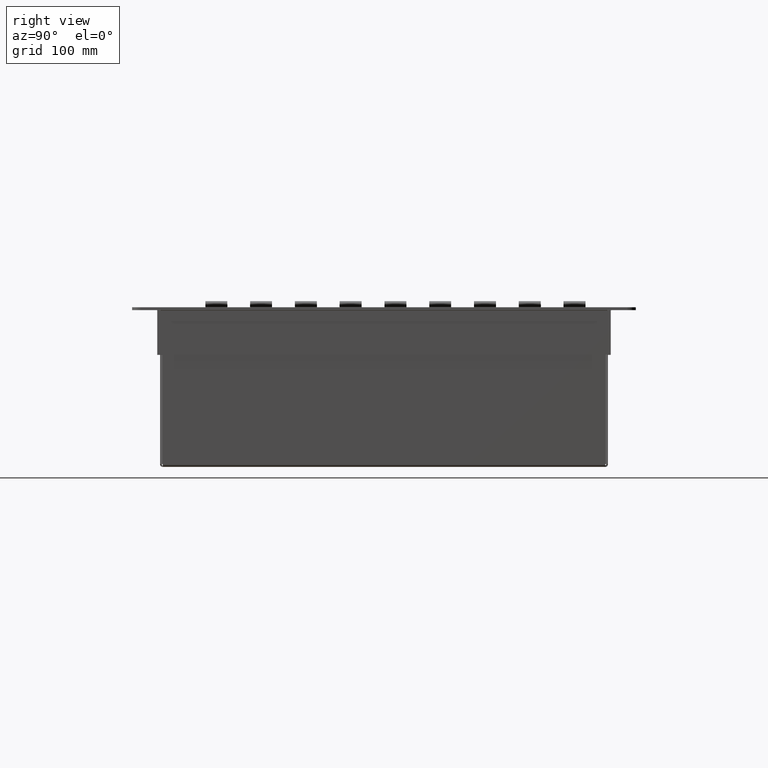
[diagram: clean part render]
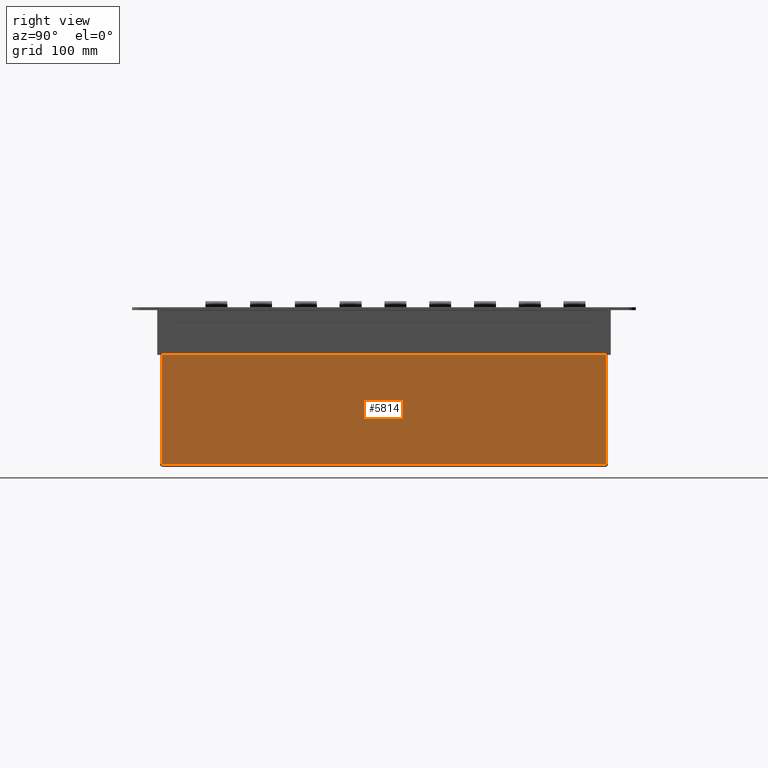
[diagram: same view with one face highlighted and labeled with its STEP entity id]
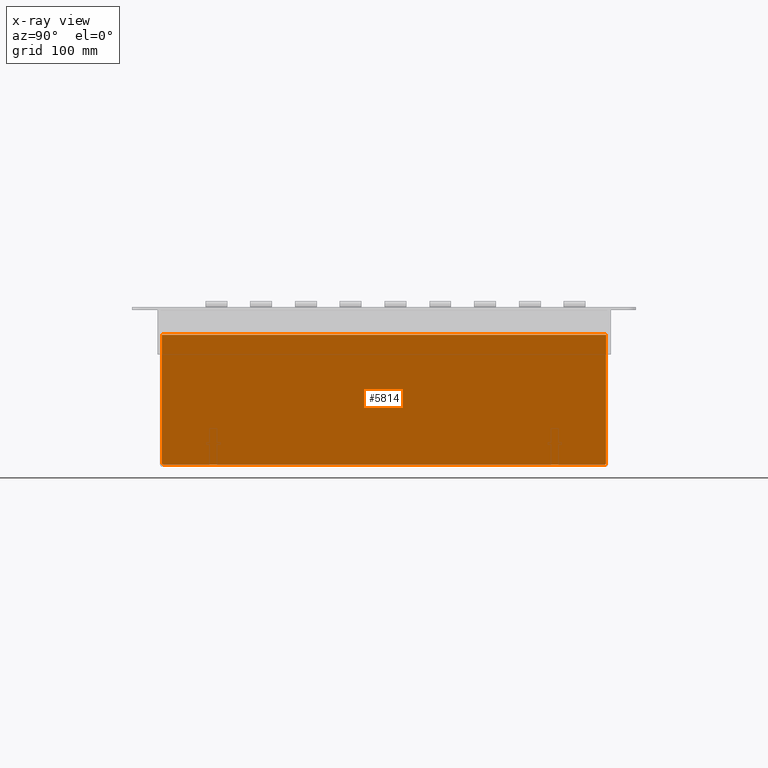
[diagram: x-ray of the same camera — body ghosted, the highlighted face saturated]
A machine part, right view. The second image highlights one B-rep face of the part: STEP entity #5814.
The next image is the same camera in x-ray: the body ghosted, the highlighted face saturated — about 0% of this face is hidden behind the body in this view.
In plain terms, the highlighted planar face has unit normal (-1, 0, 0).
Its self-contained STEP definition (entity closure, byte-faithful):
#156=CIRCLE($,#6187,0.07);
#158=CIRCLE($,#6191,0.07);
#464=PLANE($,#6190);
#716=FACE_OUTER_BOUND($,#1063,.T.);
#1063=EDGE_LOOP($,(#4164,#4165,#4166,#4167,#4168,#4169,#4170,#4171));
#1511=LINE($,#9045,#2059);
#1528=LINE($,#9257,#2076);
#1553=LINE($,#9308,#2101);
#1556=LINE($,#9314,#2104);
#1564=LINE($,#9348,#2112);
#1565=LINE($,#9350,#2113);
#2059=VECTOR($,#6891,19.8299029130881);
#2076=VECTOR($,#6938,0.00604854345584626);
#2101=VECTOR($,#6981,0.00604854345601131);
#2104=VECTOR($,#6986,5.7647106102122);
#2112=VECTOR($,#7004,5.7647106102122);
#2113=VECTOR($,#7005,19.7655336786487);
#2567=VERTEX_POINT($,#9018);
#2568=VERTEX_POINT($,#9034);
#2582=VERTEX_POINT($,#9255);
#2599=VERTEX_POINT($,#9307);
#2601=VERTEX_POINT($,#9313);
#2605=VERTEX_POINT($,#9322);
#2606=VERTEX_POINT($,#9324);
#2611=VERTEX_POINT($,#9349);
#3114=EDGE_CURVE($,#2567,#2568,#1511,.T.);
#3144=EDGE_CURVE($,#2568,#2582,#1528,.T.);
#3169=EDGE_CURVE($,#2599,#2567,#1553,.T.);
#3172=EDGE_CURVE($,#2599,#2601,#1556,.T.);
#3177=EDGE_CURVE($,#2606,#2605,#156,.T.);
#3184=EDGE_CURVE($,#2606,#2582,#1564,.T.);
#3185=EDGE_CURVE($,#2605,#2611,#1565,.T.);
#3186=EDGE_CURVE($,#2611,#2601,#158,.T.);
#4164=ORIENTED_EDGE($,*,*,#3169,.T.);
#4165=ORIENTED_EDGE($,*,*,#3114,.T.);
#4166=ORIENTED_EDGE($,*,*,#3144,.T.);
#4167=ORIENTED_EDGE($,*,*,#3184,.F.);
#4168=ORIENTED_EDGE($,*,*,#3177,.T.);
#4169=ORIENTED_EDGE($,*,*,#3185,.T.);
#4170=ORIENTED_EDGE($,*,*,#3186,.T.);
#4171=ORIENTED_EDGE($,*,*,#3172,.F.);
#5814=ADVANCED_FACE($,(#716),#464,.F.);
#6187=AXIS2_PLACEMENT_3D($,#9325,#6993,#6994);
#6190=AXIS2_PLACEMENT_3D($,#9347,#7002,#7003);
#6191=AXIS2_PLACEMENT_3D($,#9351,#7006,#7007);
#6891=DIRECTION($,(-2.26918833073489E-016,-1.,7.04921969940561E-017));
#6938=DIRECTION($,(-2.26918833073489E-016,-1.,7.04921969940561E-017));
#6981=DIRECTION($,(-2.26918833073489E-016,-1.,7.04921969940561E-017));
#6986=DIRECTION($,(-5.92142092724008E-014,-2.09805925913411E-016,-1.));
#6993=DIRECTION('center_axis',(-1.,2.26918833073491E-016,3.35108153683859E-014));
#6994=DIRECTION('ref_axis',(3.38120122885621E-014,6.99353086378028E-017,
1.));
#7002=DIRECTION('center_axis',(-1.,2.26918833073491E-016,3.35108153683859E-014));
#7003=DIRECTION('ref_axis',(3.15836246045365E-014,6.99353086378028E-017,
1.));
#7004=DIRECTION($,(3.38120122885621E-014,-2.36658271566304E-030,1.));
#7005=DIRECTION($,(2.26918833073491E-016,1.,-5.30792885732121E-030));
#7006=DIRECTION('center_axis',(-1.,2.26918833073491E-016,3.35108153683859E-014));
#7007=DIRECTION('ref_axis',(3.38120122885621E-014,6.99353086378028E-017,
1.));
#9018=CARTESIAN_POINT('',(10.0000000000002,9.91495145654399,5.89475));
#9034=CARTESIAN_POINT('',(10.0000000000002,-9.91495145654415,5.89475));
#9045=CARTESIAN_POINT($,(10.0000000000002,4.9605,5.89475));
#9255=CARTESIAN_POINT('',(10.0000000000002,-9.921,5.89475));
#9257=CARTESIAN_POINT($,(10.0000000000002,4.9605,5.89475));
#9307=CARTESIAN_POINT('',(10.0000000000002,9.921,5.89475));
#9308=CARTESIAN_POINT($,(10.0000000000002,4.9605,5.89475));
#9313=CARTESIAN_POINT('',(10.,9.921,0.130039389787799));
#9314=CARTESIAN_POINT($,(9.99999999999999,9.92099999999999,-0.0673176844616879));
#9322=CARTESIAN_POINT('',(9.99999999999999,-9.88276683932436,0.105249999999997));
#9324=CARTESIAN_POINT('',(10.,-9.921,0.130039389787802));
#9325=CARTESIAN_POINT('Origin',(9.99999999999999,-9.93789192111542,0.0621080788845785));
#9347=CARTESIAN_POINT('Origin',(10.0000000000001,-1.8962772265035E-015,
3.00948307888458));
#9348=CARTESIAN_POINT($,(9.99999999999999,-9.921,0.10525));
#9349=CARTESIAN_POINT('',(10.,9.88276683932436,0.105249999999997));
#9350=CARTESIAN_POINT($,(10.,-2.35447483709972E-015,0.105249999999998));
#9351=CARTESIAN_POINT('Origin',(9.99999999999999,9.93789192111542,0.0621080788845757));